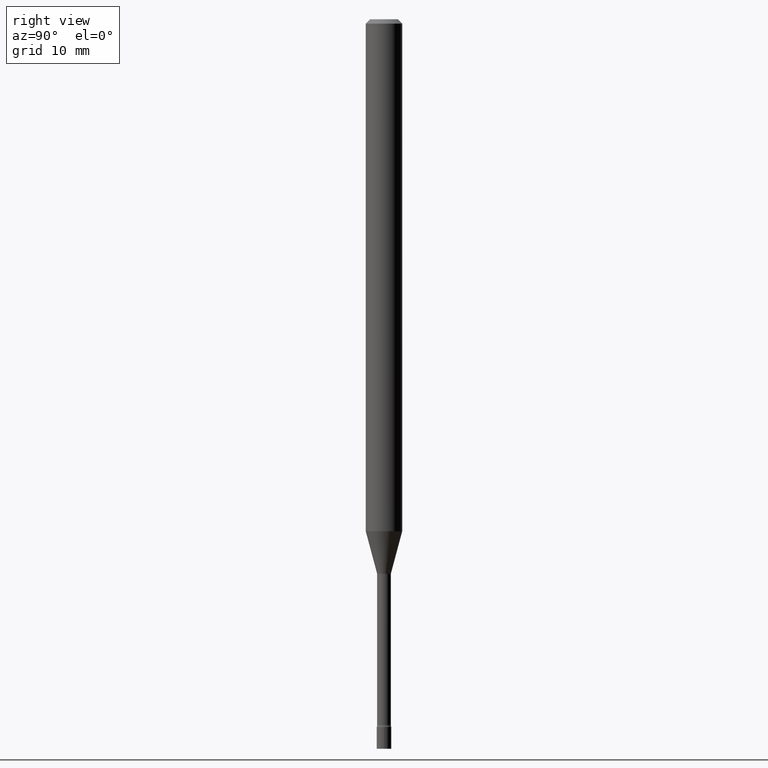
[diagram: clean part render]
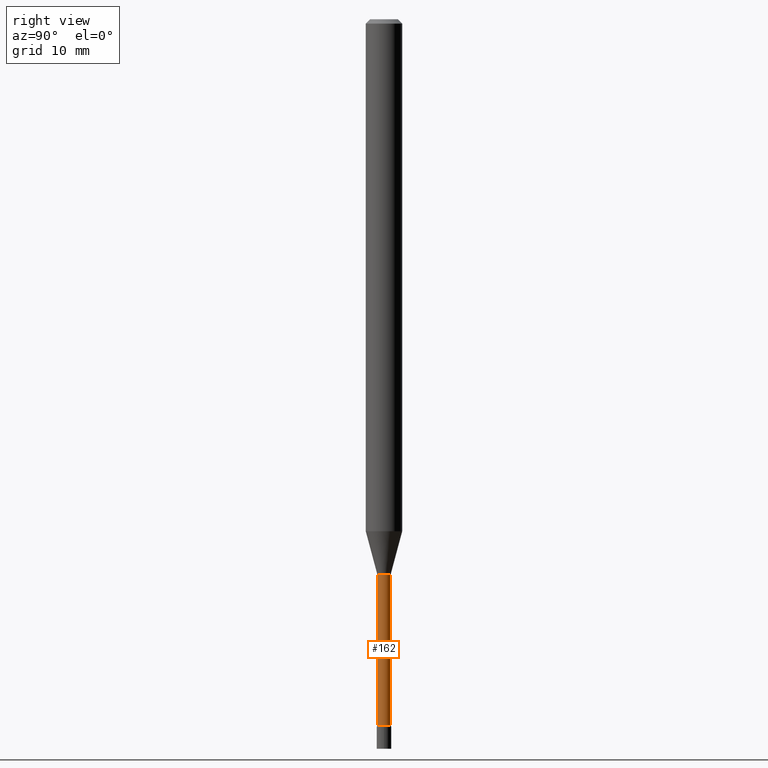
[diagram: same view with one face highlighted and labeled with its STEP entity id]
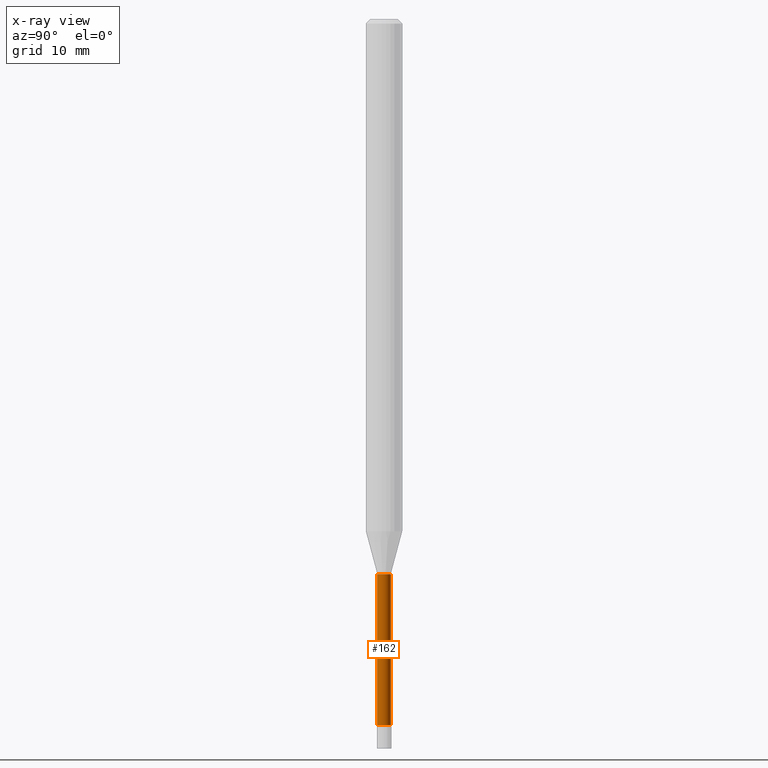
[diagram: x-ray of the same camera — body ghosted, the highlighted face saturated]
A machine part, right view. The second image highlights one B-rep face of the part: STEP entity #162.
The next image is the same camera in x-ray: the body ghosted, the highlighted face saturated — about 0% of this face is hidden behind the body in this view.
In plain terms, the highlighted cylindrical surface (edge-blend (fillet) strip) has radius 0.5969 mm, axis along (-0, 0, 1).
Its self-contained STEP definition (entity closure, byte-faithful):
#19 = VERTEX_POINT ( 'NONE', #87 ) ;
#28 = CARTESIAN_POINT ( 'NONE',  ( -1.640996229256275231E-16, -0.02350000000000003475, 8.205007746749178948E-17 ) ) ;
#62 = CARTESIAN_POINT ( 'NONE',  ( 4.651204979193061807E-29, -6.640731006494541112E-15, -1.901974787463811323 ) ) ;
#71 = CARTESIAN_POINT ( 'NONE',  ( 1.669775429036237659E-16, 0.02350000000000003475, -8.205007746749178948E-17 ) ) ;
#72 = CYLINDRICAL_SURFACE ( 'NONE', #398, 0.02350000000000003475 ) ;
#85 = VERTEX_POINT ( 'NONE', #89 ) ;
#87 = CARTESIAN_POINT ( 'NONE',  ( -1.640996229255686543E-16, -0.02350000000000852102, -2.418461651584689509 ) ) ;
#89 = CARTESIAN_POINT ( 'NONE',  ( -1.640996229255807091E-16, -0.02350000000000664058, -1.901974787463811323 ) ) ;
#92 = VECTOR ( 'NONE', #195, 39.37007874015748143 ) ;
#104 = CARTESIAN_POINT ( 'NONE',  ( 5.914253411759387848E-29, -8.444041100624749086E-15, -2.418461651584689509 ) ) ;
#106 = FACE_OUTER_BOUND ( 'NONE', #291, .T. ) ;
#110 = DIRECTION ( 'NONE',  ( -6.982962677686267499E-15, -1.000000000000000000, 3.491492658191134624E-15 ) ) ;
#116 = VERTEX_POINT ( 'NONE', #178 ) ;
#153 = EDGE_CURVE ( 'NONE', #19, #85, #374, .T. ) ;
#160 = ORIENTED_EDGE ( 'NONE', *, *, #153, .F. ) ;
#161 = VECTOR ( 'NONE', #392, 39.37007874015748143 ) ;
#162 = ADVANCED_FACE ( 'NONE', ( #106 ), #72, .T. ) ;
#169 = AXIS2_PLACEMENT_3D ( 'NONE', #62, #388, #346 ) ;
#178 = CARTESIAN_POINT ( 'NONE',  ( 1.723066134218837113E-16, 0.02349999999999163522, -2.418461651584689509 ) ) ;
#186 = DIRECTION ( 'NONE',  ( -2.445460901926682193E-29, 3.491492658191134624E-15, 1.000000000000000000 ) ) ;
#188 = LINE ( 'NONE', #71, #161 ) ;
#194 = EDGE_CURVE ( 'NONE', #85, #359, #416, .T. ) ;
#195 = DIRECTION ( 'NONE',  ( -2.445460901926682193E-29, 3.491492658191134624E-15, 1.000000000000000000 ) ) ;
#201 = EDGE_CURVE ( 'NONE', #116, #359, #188, .T. ) ;
#218 = EDGE_CURVE ( 'NONE', #19, #116, #336, .T. ) ;
#231 = DIRECTION ( 'NONE',  ( -2.445460901926682193E-29, 3.491492658191134624E-15, 1.000000000000000000 ) ) ;
#234 = CARTESIAN_POINT ( 'NONE',  ( 0.000000000000000000, 0.000000000000000000, 0.000000000000000000 ) ) ;
#245 = AXIS2_PLACEMENT_3D ( 'NONE', #104, #186, #310 ) ;
#279 = ORIENTED_EDGE ( 'NONE', *, *, #201, .T. ) ;
#291 = EDGE_LOOP ( 'NONE', ( #444, #279, #468, #160 ) ) ;
#310 = DIRECTION ( 'NONE',  ( -6.982962677686265133E-15, -1.000000000000000000, 0.000000000000000000 ) ) ;
#324 = CARTESIAN_POINT ( 'NONE',  ( 1.669775429036828812E-16, 0.02349999999999335606, -1.901974787463811323 ) ) ;
#336 = CIRCLE ( 'NONE', #245, 0.02350000000000007985 ) ;
#346 = DIRECTION ( 'NONE',  ( -6.982962677686266711E-15, -1.000000000000000000, 0.000000000000000000 ) ) ;
#359 = VERTEX_POINT ( 'NONE', #324 ) ;
#374 = LINE ( 'NONE', #28, #92 ) ;
#388 = DIRECTION ( 'NONE',  ( -2.445460901926682193E-29, 3.491492658191134624E-15, 1.000000000000000000 ) ) ;
#392 = DIRECTION ( 'NONE',  ( -2.445460901926682193E-29, 3.491492658191134624E-15, 1.000000000000000000 ) ) ;
#398 = AXIS2_PLACEMENT_3D ( 'NONE', #234, #231, #110 ) ;
#416 = CIRCLE ( 'NONE', #169, 0.02349999999999999659 ) ;
#444 = ORIENTED_EDGE ( 'NONE', *, *, #218, .T. ) ;
#468 = ORIENTED_EDGE ( 'NONE', *, *, #194, .F. ) ;